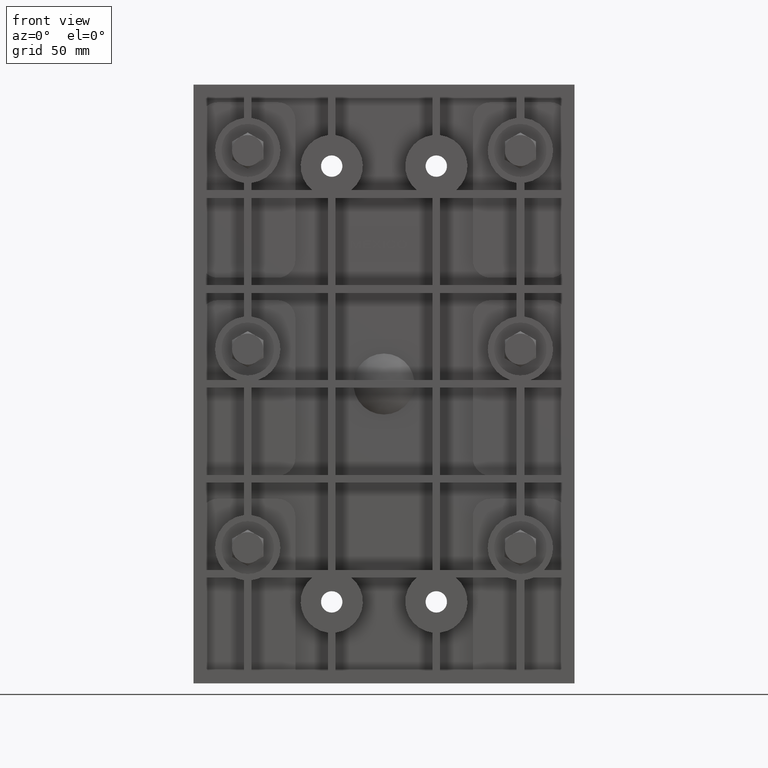
[diagram: clean part render]
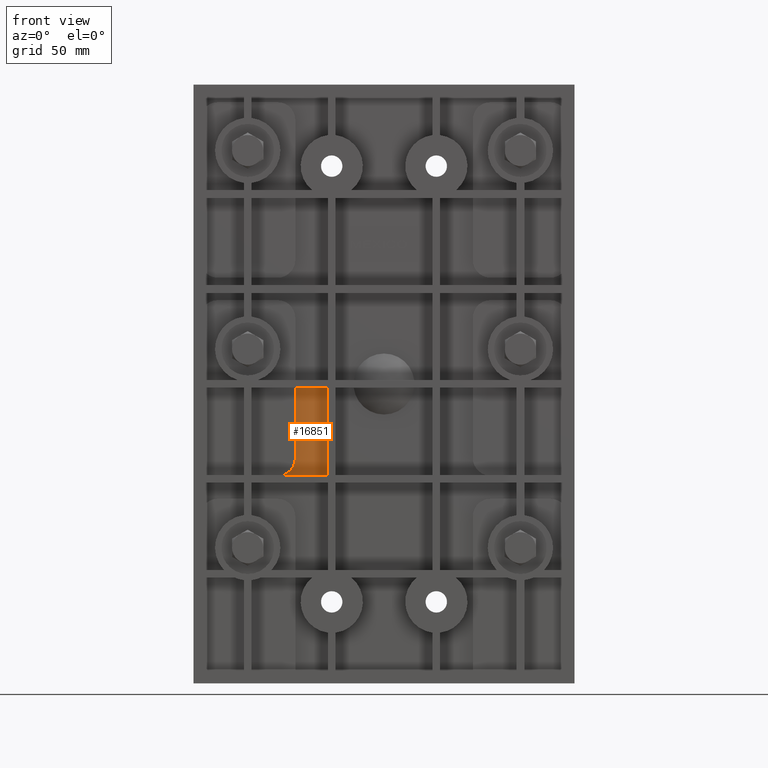
[diagram: same view with one face highlighted and labeled with its STEP entity id]
A machine part, front view. The second image highlights one B-rep face of the part: STEP entity #16851.
In plain terms, the highlighted planar face has unit normal (0, -1, 0).
Its self-contained STEP definition (entity closure, byte-faithful):
#1339 = DIRECTION ( 'NONE',  ( 0.0000000000000000000, -1.000000000000000000, 0.0000000000000000000 ) ) ;
#4064 = CARTESIAN_POINT ( 'NONE',  ( -1.425000000000000000, 0.6250000000000000000, -0.06249999999999999300 ) ) ;
#5578 = ORIENTED_EDGE ( 'NONE', *, *, #40887, .T. ) ;
#6965 = ORIENTED_EDGE ( 'NONE', *, *, #46923, .T. ) ;
#7951 = CARTESIAN_POINT ( 'NONE',  ( -1.425000000000000300, 0.6250000000000000000, -1.189999999999997900 ) ) ;
#9376 = VERTEX_POINT ( 'NONE', #20378 ) ;
#12247 = LINE ( 'NONE', #43810, #47710 ) ;
#16851 = ADVANCED_FACE ( 'NONE', ( #29572 ), #23253, .T. ) ;
#18428 = CARTESIAN_POINT ( 'NONE',  ( -1.710000000000000000, 0.6250000000000000000, -1.189999999999999900 ) ) ;
#20378 = CARTESIAN_POINT ( 'NONE',  ( -1.626520960714681800, 0.6250000000000000000, -1.462500000000000400 ) ) ;
#21056 = LINE ( 'NONE', #38250, #43378 ) ;
#22879 = DIRECTION ( 'NONE',  ( -6.709802089701703200E-015, 0.0000000000000000000, -1.000000000000000000 ) ) ;
#23253 = PLANE ( 'NONE',  #49687 ) ;
#24284 = VERTEX_POINT ( 'NONE', #7951 ) ;
#26160 = VERTEX_POINT ( 'NONE', #4064 ) ;
#26988 = VECTOR ( 'NONE', #33092, 39.37007874015748100 ) ;
#27015 = VECTOR ( 'NONE', #50670, 39.37007874015748100 ) ;
#27883 = CARTESIAN_POINT ( 'NONE',  ( 3.060000000000000100, 0.6250000000000000000, 4.809999999999999600 ) ) ;
#29572 = FACE_OUTER_BOUND ( 'NONE', #36602, .T. ) ;
#31957 = CARTESIAN_POINT ( 'NONE',  ( -0.9024999999999998600, 0.6250000000000000000, -0.06250000000000022200 ) ) ;
#32412 = DIRECTION ( 'NONE',  ( 0.0000000000000000000, -0.0000000000000000000, -1.000000000000000000 ) ) ;
#33092 = DIRECTION ( 'NONE',  ( -1.000000000000000000, -0.0000000000000000000, 1.393799996767480700E-017 ) ) ;
#36602 = EDGE_LOOP ( 'NONE', ( #37513, #56314, #50503, #6965, #5578 ) ) ;
#37513 = ORIENTED_EDGE ( 'NONE', *, *, #39153, .T. ) ;
#38250 = CARTESIAN_POINT ( 'NONE',  ( -0.9024999999999998600, 0.6250000000000000000, -1.462500000000000400 ) ) ;
#38871 = LINE ( 'NONE', #55245, #26988 ) ;
#38890 = LINE ( 'NONE', #46251, #27015 ) ;
#39153 = EDGE_CURVE ( 'NONE', #51267, #26160, #38871, .T. ) ;
#40887 = EDGE_CURVE ( 'NONE', #45745, #51267, #21056, .T. ) ;
#42724 = DIRECTION ( 'NONE',  ( 9.756599977372367400E-017, 0.0000000000000000000, 1.000000000000000000 ) ) ;
#43378 = VECTOR ( 'NONE', #42724, 39.37007874015748100 ) ;
#43810 = CARTESIAN_POINT ( 'NONE',  ( -1.425000000000000300, 0.6250000000000000000, -1.189999999999998800 ) ) ;
#45745 = VERTEX_POINT ( 'NONE', #48305 ) ;
#46251 = CARTESIAN_POINT ( 'NONE',  ( -0.9024999999999998600, 0.6250000000000000000, -1.462500000000000400 ) ) ;
#46923 = EDGE_CURVE ( 'NONE', #9376, #45745, #38890, .T. ) ;
#47102 = CIRCLE ( 'NONE', #51218, 0.2849999999999998100 ) ;
#47710 = VECTOR ( 'NONE', #48263, 39.37007874015748100 ) ;
#48263 = DIRECTION ( 'NONE',  ( -1.214154663850785100E-016, 0.0000000000000000000, -1.000000000000000000 ) ) ;
#48305 = CARTESIAN_POINT ( 'NONE',  ( -0.9024999999999999700, 0.6250000000000000000, -1.462500000000000100 ) ) ;
#49539 = DIRECTION ( 'NONE',  ( -0.0000000000000000000, 1.000000000000000000, -0.0000000000000000000 ) ) ;
#49687 = AXIS2_PLACEMENT_3D ( 'NONE', #27883, #1339, #32412 ) ;
#50503 = ORIENTED_EDGE ( 'NONE', *, *, #53665, .T. ) ;
#50670 = DIRECTION ( 'NONE',  ( 1.000000000000000000, -0.0000000000000000000, -0.0000000000000000000 ) ) ;
#51218 = AXIS2_PLACEMENT_3D ( 'NONE', #18428, #49539, #22879 ) ;
#51267 = VERTEX_POINT ( 'NONE', #31957 ) ;
#52959 = EDGE_CURVE ( 'NONE', #26160, #24284, #12247, .T. ) ;
#53665 = EDGE_CURVE ( 'NONE', #24284, #9376, #47102, .T. ) ;
#55245 = CARTESIAN_POINT ( 'NONE',  ( -2.127500000000000400, 0.6250000000000000000, -0.06249999999999997900 ) ) ;
#56314 = ORIENTED_EDGE ( 'NONE', *, *, #52959, .T. ) ;